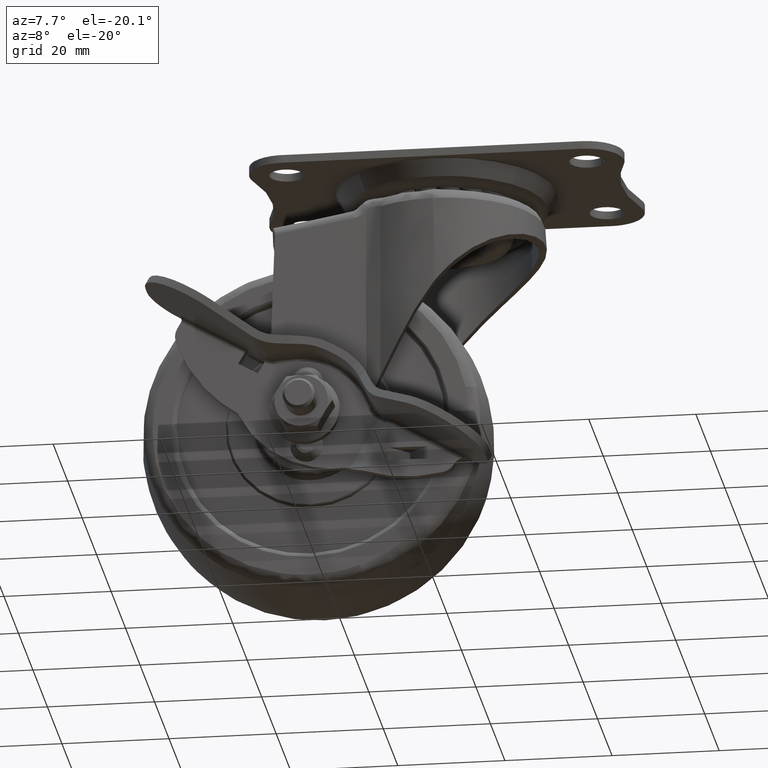
[diagram: clean part render]
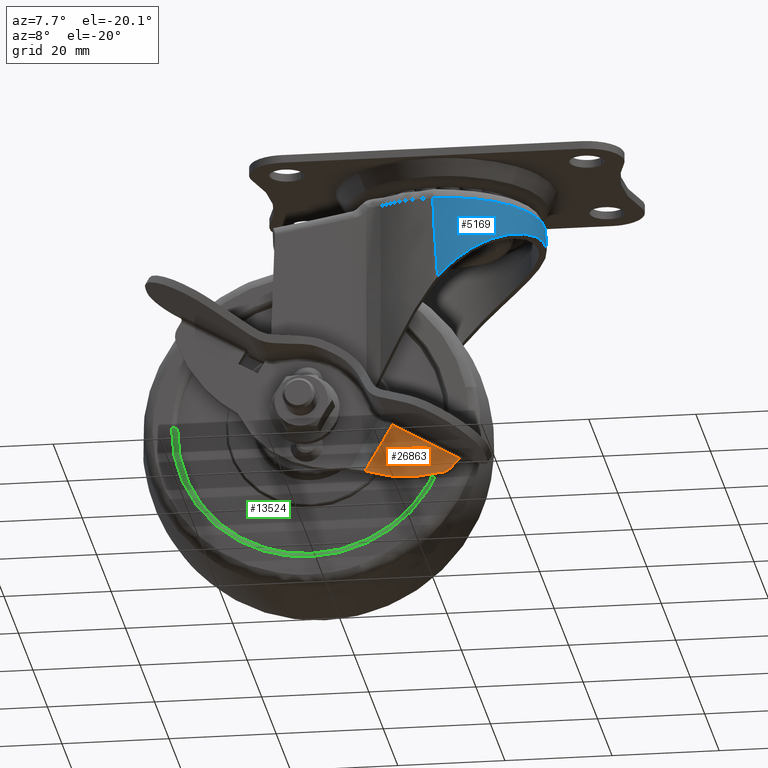
[diagram: same view with three faces highlighted in distinct colors, each labeled with its STEP entity id]
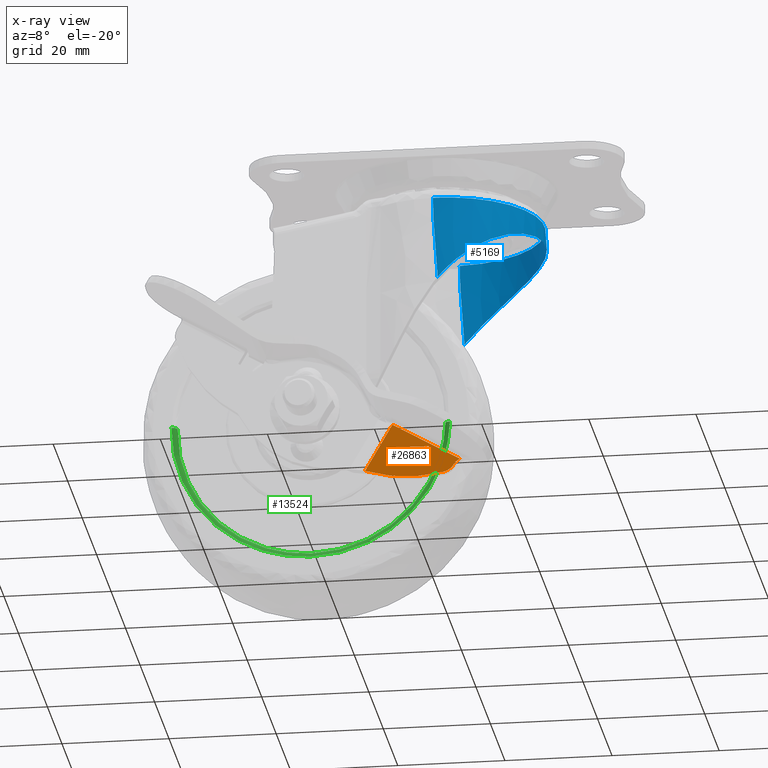
[diagram: x-ray of the same camera — body ghosted, the three highlighted faces saturated]
A machine part, auxiliary view with three faces highlighted in distinct colors.
The next image is the same camera in x-ray (body ghosted, the three faces saturated) — at least one of them is partly hidden behind the body in this view.
Their STEP definitions:

[orange] entity #26863 — the highlighted face is a freeform B-spline surface patch.
#24188=CARTESIAN_POINT('',(-3.760554572550980,-18.200001000000050,-37.886882688781149));
#24189=VERTEX_POINT('',#24188);
#24200=CARTESIAN_POINT('',(-2.585290771482475,-18.200001000000050,-39.979433434913901));
#24201=VERTEX_POINT('',#24200);
#24202=CARTESIAN_POINT('',(-2.585290771482475,-18.200001000000050,-39.979433434913901));
#24203=CARTESIAN_POINT('',(-3.760554572550980,-18.200001000000050,-37.886882688781149));
#24204=QUASI_UNIFORM_CURVE('',1,(#24202,#24203),.UNSPECIFIED.,.F.,.U.);
#24205=EDGE_CURVE('',#24201,#24189,#24204,.T.);
#24241=CARTESIAN_POINT('',(3.110047271129015,-18.200001000000050,-34.028066049158546));
#24242=VERTEX_POINT('',#24241);
#24258=CARTESIAN_POINT('',(4.285310611342440,-18.200001000000050,-36.120615974741447));
#24259=VERTEX_POINT('',#24258);
#24268=CARTESIAN_POINT('',(3.110047271129015,-18.200001000000050,-34.028066049158546));
#24269=CARTESIAN_POINT('',(4.285310611342440,-18.200001000000050,-36.120615974741447));
#24270=QUASI_UNIFORM_CURVE('',1,(#24268,#24269),.UNSPECIFIED.,.F.,.U.);
#24271=EDGE_CURVE('',#24242,#24259,#24270,.T.);
#24382=CARTESIAN_POINT('',(-5.099997016335720,-18.200001000000050,-33.500016200391762));
#24383=VERTEX_POINT('',#24382);
#24439=CARTESIAN_POINT('',(-5.099997016335720,-18.200001000000050,-43.723593691209487));
#24440=VERTEX_POINT('',#24439);
#24451=CARTESIAN_POINT('',(-5.099997016335720,-18.200001000000050,-33.500016200391762));
#24452=CARTESIAN_POINT('',(-5.099997016335720,-18.200001000000050,-43.723593691209487));
#24453=QUASI_UNIFORM_CURVE('',1,(#24451,#24452),.UNSPECIFIED.,.F.,.U.);
#24454=EDGE_CURVE('',#24383,#24440,#24453,.T.);
#24547=CARTESIAN_POINT('',(9.500011608893679,-18.200000999999951,-33.500043960416249));
#24548=VERTEX_POINT('',#24547);
#24549=CARTESIAN_POINT('',(9.500011608893679,-18.200000999999951,-33.500043960416249));
#24550=CARTESIAN_POINT('',(-5.099997016335720,-18.200001000000050,-33.500016200391762));
#24551=QUASI_UNIFORM_CURVE('',1,(#24549,#24550),.UNSPECIFIED.,.F.,.U.);
#24552=EDGE_CURVE('',#24548,#24383,#24551,.T.);
#25460=CARTESIAN_POINT('',(9.000099699842162,-18.200001000000050,-34.978723908718749));
#25461=VERTEX_POINT('',#25460);
#25462=CARTESIAN_POINT('',(9.000099699842162,-18.200001000000050,-34.978723908718749));
#25463=CARTESIAN_POINT('',(9.001881380710193,-18.200001000000011,-34.763765464275430));
#25464=CARTESIAN_POINT('',(9.075090063611201,-18.200000999999919,-34.235234355348801));
#25465=CARTESIAN_POINT('',(9.311214726225023,-18.200000999999929,-33.751240275202257));
#25466=CARTESIAN_POINT('',(9.500011608893679,-18.200000999999951,-33.500043960416249));
#25467=B_SPLINE_CURVE_WITH_KNOTS('',3,(#25462,#25463,#25464,#25465,#25466),.UNSPECIFIED.,.F.,.U.,(4,1,4),(0.000000038030307,0.644908400968077,1.587459451626553),.UNSPECIFIED.);
#25468=EDGE_CURVE('',#25461,#24548,#25467,.T.);
#26130=CARTESIAN_POINT('',(8.018981607633881,-18.200001000000050,-37.172269456478951));
#26131=VERTEX_POINT('',#26130);
#26137=CARTESIAN_POINT('',(-5.099997016335720,-18.200001000000050,-43.723593691209487));
#26138=CARTESIAN_POINT('',(-4.112255990179443,-18.200001000000071,-43.535533027594042));
#26139=CARTESIAN_POINT('',(-1.631563796275703,-18.200001000000061,-42.918022641952668));
#26140=CARTESIAN_POINT('',(1.748905572819824,-18.200001000000121,-41.545046553451577));
#26141=CARTESIAN_POINT('',(5.154651901472310,-18.200001000000078,-39.540696212099057));
#26142=CARTESIAN_POINT('',(7.046402674110341,-18.200001000000078,-38.057133756000127));
#26143=CARTESIAN_POINT('',(8.018981607633881,-18.200001000000050,-37.172269456478951));
#26144=B_SPLINE_CURVE_WITH_KNOTS('',3,(#26137,#26138,#26139,#26140,#26141,#26142,#26143),.UNSPECIFIED.,.F.,.U.,(4,1,1,1,4),(4.931676E-009,3.016472451849115,7.657200474243243,10.905715521691510,14.850336306112579),.UNSPECIFIED.);
#26145=EDGE_CURVE('',#24440,#26131,#26144,.T.);
#26198=CARTESIAN_POINT('',(8.018981607633881,-18.200001000000050,-37.172269456478951));
#26199=CARTESIAN_POINT('',(8.266803752465545,-18.200001000000061,-36.947111580387350));
#26200=CARTESIAN_POINT('',(8.605005679874410,-18.200001000000089,-36.515432134636377));
#26201=CARTESIAN_POINT('',(8.923662425377994,-18.200001000000121,-35.750650303717457));
#26202=CARTESIAN_POINT('',(8.997792402454531,-18.200001000000061,-35.262015585171177));
#26203=CARTESIAN_POINT('',(9.000099699842162,-18.200001000000050,-34.978723908718749));
#26204=B_SPLINE_CURVE_WITH_KNOTS('',3,(#26198,#26199,#26200,#26201,#26202,#26203),.UNSPECIFIED.,.F.,.U.,(4,1,1,4),(0.000000041465652,1.004425111143239,1.622505027469119,2.472403478058530),.UNSPECIFIED.);
#26205=EDGE_CURVE('',#26131,#25461,#26204,.T.);
#26837=CARTESIAN_POINT('',(-5.829267555922717,-18.200000999999951,-44.234262459274298));
#26838=CARTESIAN_POINT('',(10.229282409549169,-18.200000999999951,-44.234262459274291));
#26839=CARTESIAN_POINT('',(-5.829267555922717,-18.200000999999951,-32.989347432326952));
#26840=CARTESIAN_POINT('',(10.229282409549169,-18.200000999999951,-32.989347432326952));
#26841=B_SPLINE_SURFACE_WITH_KNOTS('',1,1,((#26837,#26839),(#26838,#26840)),.UNSPECIFIED.,.F.,.F.,.U.,(2,2),(2,2),(0.0,16.058549965471890),(0.0,11.244915026947350),.UNSPECIFIED.);
#26842=ORIENTED_EDGE('',*,*,#24552,.T.);
#26843=ORIENTED_EDGE('',*,*,#24454,.T.);
#26844=ORIENTED_EDGE('',*,*,#26145,.T.);
#26845=ORIENTED_EDGE('',*,*,#26205,.T.);
#26846=ORIENTED_EDGE('',*,*,#25468,.T.);
#26847=EDGE_LOOP('',(#26842,#26843,#26844,#26845,#26846));
#26848=FACE_OUTER_BOUND('',#26847,.T.);
#26849=CARTESIAN_POINT('',(4.285310611342440,-18.200001000000050,-36.120615974741447));
#26850=CARTESIAN_POINT('',(-2.585290771482475,-18.200001000000050,-39.979433434913901));
#26851=QUASI_UNIFORM_CURVE('',1,(#26849,#26850),.UNSPECIFIED.,.F.,.U.);
#26852=EDGE_CURVE('',#24259,#24201,#26851,.T.);
#26853=ORIENTED_EDGE('',*,*,#26852,.T.);
#26854=ORIENTED_EDGE('',*,*,#24205,.T.);
#26855=CARTESIAN_POINT('',(-3.760554572550980,-18.200001000000050,-37.886882688781149));
#26856=CARTESIAN_POINT('',(3.110047271129015,-18.200001000000050,-34.028066049158546));
#26857=QUASI_UNIFORM_CURVE('',1,(#26855,#26856),.UNSPECIFIED.,.F.,.U.);
#26858=EDGE_CURVE('',#24189,#24242,#26857,.T.);
#26859=ORIENTED_EDGE('',*,*,#26858,.T.);
#26860=ORIENTED_EDGE('',*,*,#24271,.T.);
#26861=EDGE_LOOP('',(#26853,#26854,#26859,#26860));
#26862=FACE_BOUND('',#26861,.T.);
#26863=ADVANCED_FACE('',(#26848,#26862),#26841,.T.);

[blue] entity #5169 — the highlighted face is a freeform B-spline surface patch.
#4642=CARTESIAN_POINT('',(-0.124183915955278,18.499212722890999,-7.398438102774410));
#4643=VERTEX_POINT('',#4642);
#4778=CARTESIAN_POINT('',(-0.124183915955352,-18.499212722890999,-7.398438102774410));
#4779=VERTEX_POINT('',#4778);
#4791=CARTESIAN_POINT('',(-0.124183915955278,18.499212722890999,-7.398438102774410));
#4792=CARTESIAN_POINT('',(18.236654602632651,18.330664406769301,-7.230263392723984));
#4793=CARTESIAN_POINT('',(18.236654602632651,1.665785E-013,-7.230263392723982));
#4794=CARTESIAN_POINT('',(18.236654602632651,-18.330664406768964,-7.230263392723984));
#4795=CARTESIAN_POINT('',(-0.124183915955339,-18.499212722890999,-7.398438102774412));
#4803=(BOUNDED_CURVE()B_SPLINE_CURVE(2,(#4791,#4792,#4793,#4794,#4795),.UNSPECIFIED.,.F.,.U.)B_SPLINE_CURVE_WITH_KNOTS((3,2,3),(0.0,0.500000000000000,1.0),.UNSPECIFIED.)CURVE()GEOMETRIC_REPRESENTATION_ITEM()RATIONAL_B_SPLINE_CURVE((1.0,0.710350224567669,1.0,0.710350224567669,1.0))REPRESENTATION_ITEM(''));
#4804=EDGE_CURVE('',#4643,#4779,#4803,.T.);
#4830=CARTESIAN_POINT('',(9.947598E-013,18.499994788543699,-11.728746361509000));
#4831=VERTEX_POINT('',#4830);
#4832=CARTESIAN_POINT('',(9.947598E-013,18.499994788543699,-11.728746361509000));
#4833=CARTESIAN_POINT('',(-0.124183915955278,18.499212722890999,-7.398438102774410));
#4834=QUASI_UNIFORM_CURVE('',1,(#4832,#4833),.UNSPECIFIED.,.F.,.U.);
#4835=EDGE_CURVE('',#4831,#4643,#4834,.T.);
#4945=CARTESIAN_POINT('',(9.775167E-013,-18.499994788544701,-11.728746361508881));
#4946=VERTEX_POINT('',#4945);
#4952=CARTESIAN_POINT('',(-0.124183915955352,-18.499212722890999,-7.398438102774410));
#4953=CARTESIAN_POINT('',(9.775167E-013,-18.499994788544701,-11.728746361508881));
#4954=QUASI_UNIFORM_CURVE('',1,(#4952,#4953),.UNSPECIFIED.,.F.,.U.);
#4955=EDGE_CURVE('',#4779,#4946,#4954,.T.);
#5028=CARTESIAN_POINT('',(0.307942596464959,18.493655302378340,-23.386676899766879));
#5029=CARTESIAN_POINT('',(-0.804177533850864,18.493655302378340,-7.044271339017797));
#5030=CARTESIAN_POINT('',(19.751220436647351,19.003972994167544,-22.063538723749211));
#5031=CARTESIAN_POINT('',(18.639100306331528,19.003972994167544,-5.721133163000137));
#5032=CARTESIAN_POINT('',(19.242080288076451,-0.484273407275633,-22.098186316251599));
#5033=CARTESIAN_POINT('',(18.129960157760632,-0.484273407275633,-5.755780755502531));
#5034=CARTESIAN_POINT('',(18.732940139505541,-19.972519808718818,-22.132833908753984));
#5035=CARTESIAN_POINT('',(17.620820009189721,-19.972519808718818,-5.790428348004926));
#5036=CARTESIAN_POINT('',(-0.657045027602577,-18.442965478672740,-23.452345455001389));
#5037=CARTESIAN_POINT('',(-1.769165157918400,-18.442965478672740,-7.109939894252329));
#5045=(BOUNDED_SURFACE()B_SPLINE_SURFACE(1,2,((#5028,#5030,#5032,#5034,#5036),(#5029,#5031,#5033,#5035,#5037)),.UNSPECIFIED.,.F.,.F.,.U.)B_SPLINE_SURFACE_WITH_KNOTS((2,2),(3,2,3),(0.0,16.380202400955131),(0.0,31.792900085474269,63.585800170948552),.UNSPECIFIED.)GEOMETRIC_REPRESENTATION_ITEM()RATIONAL_B_SPLINE_SURFACE(((1.0,0.688354575693754,1.0,0.688354575693754,1.0),(1.0,0.688354575693754,1.0,0.688354575693754,1.0)))REPRESENTATION_ITEM('')SURFACE());
#5046=CARTESIAN_POINT('',(0.764635258192483,18.499994788544701,-22.964924140131551));
#5047=VERTEX_POINT('',#5046);
#5048=CARTESIAN_POINT('',(0.764635258192483,18.499994788544701,-22.964924140131551));
#5049=CARTESIAN_POINT('',(9.947598E-013,18.499994788543699,-11.728746361509000));
#5050=QUASI_UNIFORM_CURVE('',1,(#5048,#5049),.UNSPECIFIED.,.F.,.U.);
#5051=EDGE_CURVE('',#5047,#4831,#5050,.T.);
#5052=ORIENTED_EDGE('',*,*,#5051,.T.);
#5053=ORIENTED_EDGE('',*,*,#4835,.T.);
#5054=ORIENTED_EDGE('',*,*,#4804,.T.);
#5055=ORIENTED_EDGE('',*,*,#4955,.T.);
#5056=CARTESIAN_POINT('',(0.764635258192480,-18.499994788543699,-22.964924140131600));
#5057=VERTEX_POINT('',#5056);
#5058=CARTESIAN_POINT('',(0.764635258192480,-18.499994788543699,-22.964924140131600));
#5059=CARTESIAN_POINT('',(9.775167E-013,-18.499994788544701,-11.728746361508881));
#5060=QUASI_UNIFORM_CURVE('',1,(#5058,#5059),.UNSPECIFIED.,.F.,.U.);
#5061=EDGE_CURVE('',#5057,#4946,#5060,.T.);
#5062=ORIENTED_EDGE('',*,*,#5061,.F.);
#5063=CARTESIAN_POINT('',(0.764635258192534,18.499994788544701,-22.964924140131590));
#5064=CARTESIAN_POINT('',(0.981367129685784,18.499994788544690,-22.713375665610489));
#5065=CARTESIAN_POINT('',(1.201693366090477,18.495584855724680,-22.463987833194491));
#5066=CARTESIAN_POINT('',(1.537677216807746,18.481737453002690,-22.093162783301938));
#5067=CARTESIAN_POINT('',(1.650687236740920,18.475907729757811,-21.969992322659181));
#5068=CARTESIAN_POINT('',(1.877695053429074,18.461784500975039,-21.725661606536089));
#5069=CARTESIAN_POINT('',(1.991765690828718,18.453490036339641,-21.604418254421262));
#5070=CARTESIAN_POINT('',(2.564897419778493,18.405683787878701,-21.002792048264279));
#5071=CARTESIAN_POINT('',(3.032294278490292,18.347198543472150,-20.536174150602630));
#5072=CARTESIAN_POINT('',(3.983467439221932,18.184989395909970,-19.631914228243531));
#5073=CARTESIAN_POINT('',(4.467246614756705,18.081278083070700,-19.194272312211648));
#5074=CARTESIAN_POINT('',(5.449736534148959,17.822958290038560,-18.347743501247219));
#5075=CARTESIAN_POINT('',(5.948451264257896,17.668368487678080,-17.938856463315311));
#5076=CARTESIAN_POINT('',(6.580178612358600,17.438924360126769,-17.445687161428900));
#5077=CARTESIAN_POINT('',(6.706940230807167,17.391220962142341,-17.347950698107461));
#5078=CARTESIAN_POINT('',(6.961268161713835,17.292056017014740,-17.154273474758959));
#5079=CARTESIAN_POINT('',(7.088717438788416,17.240633977715540,-17.058425881884698));
#5080=CARTESIAN_POINT('',(7.469898866850990,17.081552434350652,-16.775272497357321));
#5081=CARTESIAN_POINT('',(7.723190237578830,16.968799965915050,-16.591800353664858));
#5082=CARTESIAN_POINT('',(8.479960163827318,16.610022095126130,-16.056727015336090));
#5083=CARTESIAN_POINT('',(8.980345900517063,16.343505997427751,-15.720457440859001));
#5084=CARTESIAN_POINT('',(9.969377016833814,15.752917184122561,-15.086185816102420));
#5085=CARTESIAN_POINT('',(10.458031121802680,15.428857360361130,-14.788184773944380));
#5086=CARTESIAN_POINT('',(11.419661834351960,14.719202239008860,-14.228183773448770));
#5087=CARTESIAN_POINT('',(11.892651353792180,14.333627972235741,-13.966183382090360));
#5088=CARTESIAN_POINT('',(12.471141639281621,13.809718621311010,-13.659981541131820));
#5089=CARTESIAN_POINT('',(12.585869301042401,13.703126916927850,-13.599983585479910));
#5090=CARTESIAN_POINT('',(12.812460958467980,13.487150926455181,-13.482844734044400));
#5091=CARTESIAN_POINT('',(13.148465713764759,13.158623971942159,-13.311204053265920));
#5092=CARTESIAN_POINT('',(13.472699646095259,12.816475535596719,-13.151317916386990));
#5093=CARTESIAN_POINT('',(14.105073580553301,12.114093424333261,-12.846147722526251));
#5094=CARTESIAN_POINT('',(14.505231257959990,11.621765254924810,-12.662133219850650));
#5095=CARTESIAN_POINT('',(15.259847770390580,10.588448063751271,-12.328226916203249));
#5096=CARTESIAN_POINT('',(15.614320735042449,10.047469329752740,-12.178337535588440));
#5097=CARTESIAN_POINT('',(16.026306551794921,9.339639599540481,-12.010070930468499));
#5098=CARTESIAN_POINT('',(16.107271090968599,9.196255182358424,-11.977324738004279));
#5099=CARTESIAN_POINT('',(16.265318191152819,8.907533766670884,-11.913976136699230));
#5100=CARTESIAN_POINT('',(16.342357092951929,8.762294372000300,-11.883389878070830));
#5101=CARTESIAN_POINT('',(16.567550641533781,8.323971508353528,-11.794748591883989));
#5102=CARTESIAN_POINT('',(16.709785763352070,8.028285266992523,-11.739806875093610));
#5103=CARTESIAN_POINT('',(17.112922867786828,7.130993907433786,-11.586425685553980));
#5104=CARTESIAN_POINT('',(17.350315596481931,6.519185762392306,-11.499372356796099));
#5105=CARTESIAN_POINT('',(17.761573280567760,5.268581617815018,-11.351770219288090));
#5106=CARTESIAN_POINT('',(17.935448525779108,4.629789031732808,-11.291224119897789));
#5107=CARTESIAN_POINT('',(18.111338414242098,3.813963615183126,-11.230819955609229));
#5108=CARTESIAN_POINT('',(18.144479978179021,3.649686645866969,-11.219493345921030));
#5109=CARTESIAN_POINT('',(18.206216280778921,3.321173323171090,-11.198472553397529));
#5110=CARTESIAN_POINT('',(18.234843550675659,3.156819519190338,-11.188767037658730));
#5111=CARTESIAN_POINT('',(18.314072344358031,2.663470346306199,-11.161990524757529));
#5112=CARTESIAN_POINT('',(18.358025611653840,2.334187456503734,-11.147255273919169));
#5113=CARTESIAN_POINT('',(18.463666475463430,1.345208796964357,-11.111961675370400));
#5114=CARTESIAN_POINT('',(18.499206771980120,0.684386631680628,-11.100252350101609));
#5115=CARTESIAN_POINT('',(18.500755852156139,-0.640244856148940,-11.099739655351630));
#5116=CARTESIAN_POINT('',(18.466770174910021,-1.304053915966214,-11.110932567425550));
#5117=CARTESIAN_POINT('',(18.379504477927700,-2.135744438968100,-11.140077692001590));
#5118=CARTESIAN_POINT('',(18.359770179167111,-2.302420702918663,-11.146681824379060));
#5119=CARTESIAN_POINT('',(18.316011930959512,-2.634120613834334,-11.161372050676210));
#5120=CARTESIAN_POINT('',(18.291980910873480,-2.799277694357452,-11.169460467678739));
#5121=CARTESIAN_POINT('',(18.213518593500488,-3.292693856369217,-11.195967387840680));
#5122=CARTESIAN_POINT('',(18.152722560135579,-3.618899536744259,-11.216623834914961));
#5123=CARTESIAN_POINT('',(17.945390425139141,-4.589426229843163,-11.287780257418040));
#5124=CARTESIAN_POINT('',(17.773974244251850,-5.225681328841513,-11.347407907615070));
#5125=CARTESIAN_POINT('',(17.365876316602382,-6.476714034051923,-11.493704960630239));
#5126=CARTESIAN_POINT('',(17.129193483251662,-7.091492322428850,-11.580364714354710));
#5127=CARTESIAN_POINT('',(16.791968278340409,-7.846074754631925,-11.708511047589090));
#5128=CARTESIAN_POINT('',(16.722331127850659,-7.996537182682600,-11.735182859565580));
#5129=CARTESIAN_POINT('',(16.579556182036470,-8.294645156223911,-11.790351545319060));
#5130=CARTESIAN_POINT('',(16.360207132791249,-8.737506908866122,-11.875815479622780));
#5131=CARTESIAN_POINT('',(16.125627814605071,-9.167633092525644,-11.969607399717050));
#5132=CARTESIAN_POINT('',(15.636885486601400,-10.011204972217140,-12.168934027333821));
#5133=CARTESIAN_POINT('',(15.284986272117360,-10.551385670700959,-12.317432408987660));
#5134=CARTESIAN_POINT('',(14.531773604012351,-11.587884805427230,-12.650081561373920));
#5135=CARTESIAN_POINT('',(14.130451478160911,-12.084199731583750,-12.834224367868821));
#5136=CARTESIAN_POINT('',(13.598853672129900,-12.676728986305809,-13.090367853179631));
#5137=CARTESIAN_POINT('',(13.490862353591590,-12.794018510763429,-13.142983958504040));
#5138=CARTESIAN_POINT('',(13.272807127011490,-13.024823278669491,-13.250477718009350));
#5139=CARTESIAN_POINT('',(12.942868809899190,-13.365132782436300,-13.414979372724691));
#5140=CARTESIAN_POINT('',(12.604730717102910,-13.688077590330300,-13.589448698883780));
#5141=CARTESIAN_POINT('',(11.918403412483521,-14.311533570013060,-13.952220438450610));
#5142=CARTESIAN_POINT('',(11.447471338466320,-14.697298465956701,-14.212494340234739));
#5143=CARTESIAN_POINT('',(10.482906750068810,-15.411807668197371,-14.773220146534481));
#5144=CARTESIAN_POINT('',(9.989264361259904,-15.740541293869670,-15.073669667278750));
#5145=CARTESIAN_POINT('',(9.360198572270694,-16.116799489014952,-15.476799454578790));
#5146=CARTESIAN_POINT('',(9.233610307563321,-16.190410930515249,-15.558920861975899));
#5147=CARTESIAN_POINT('',(8.980525436288515,-16.333487714690239,-15.725168895915431));
#5148=CARTESIAN_POINT('',(8.600816401666945,-16.542031952741802,-15.977680003445130));
#5149=CARTESIAN_POINT('',(8.221111773875981,-16.732878905939149,-16.239662288790839));
#5150=CARTESIAN_POINT('',(7.462322367481770,-17.092190818282269,-16.776416716689731));
#5151=CARTESIAN_POINT('',(6.957299851770717,-17.301927265104439,-17.151299945450781));
#5152=CARTESIAN_POINT('',(5.951865967709049,-17.667154434566829,-17.936171488700889));
#5153=CARTESIAN_POINT('',(5.451448653472802,-17.822631320651610,-18.346159348421640));
#5154=CARTESIAN_POINT('',(4.830466291830931,-17.985747663095829,-18.881344277358231));
#5155=CARTESIAN_POINT('',(4.706347549707168,-18.016841558675718,-18.989649510667061));
#5156=CARTESIAN_POINT('',(4.459537942725135,-18.075744338288018,-19.207721360654730));
#5157=CARTESIAN_POINT('',(4.091401838649722,-18.159199804266439,-19.537063898062701));
#5158=CARTESIAN_POINT('',(3.729514876472210,-18.228539976872081,-19.873086978635630));
#5159=CARTESIAN_POINT('',(3.014116379362458,-18.349786788347359,-20.553992421535781));
#5160=CARTESIAN_POINT('',(2.548348372823501,-18.407411205726309,-21.019736654908630));
#5161=CARTESIAN_POINT('',(1.639430945615643,-18.482522392308830,-21.974709205303999));
#5162=CARTESIAN_POINT('',(1.196280661025714,-18.499994788544701,-22.463937636076459));
#5163=CARTESIAN_POINT('',(0.764635258192480,-18.499994788543699,-22.964924140131600));
#5164=B_SPLINE_CURVE_WITH_KNOTS('',3,(#5063,#5064,#5065,#5066,#5067,#5068,#5069,#5070,#5071,#5072,#5073,#5074,#5075,#5076,#5077,#5078,#5079,#5080,#5081,#5082,#5083,#5084,#5085,#5086,#5087,#5088,#5089,#5090,#5091,#5092,#5093,#5094,#5095,#5096,#5097,#5098,#5099,#5100,#5101,#5102,#5103,#5104,#5105,#5106,#5107,#5108,#5109,#5110,#5111,#5112,#5113,#5114,#5115,#5116,#5117,#5118,#5119,#5120,#5121,#5122,#5123,#5124,#5125,#5126,#5127,#5128,#5129,#5130,#5131,#5132,#5133,#5134,#5135,#5136,#5137,#5138,#5139,#5140,#5141,#5142,#5143,#5144,#5145,#5146,#5147,#5148,#5149,#5150,#5151,#5152,#5153,#5154,#5155,#5156,#5157,#5158,#5159,#5160,#5161,#5162,#5163),.UNSPECIFIED.,.F.,.U.,(4,2,2,2,2,2,2,2,2,2,2,2,2,2,1,2,2,2,2,2,2,2,2,2,2,2,2,2,2,2,2,2,2,2,1,2,2,2,2,1,2,2,2,2,1,2,2,2,2,1,2,2,4),(0.0,0.015625000000000,0.023437500000000,0.031250000000001,0.062500000000001,0.093750000000002,0.125000000000002,0.132812500000002,0.140625000000002,0.156250000000002,0.187500000000002,0.218750000000002,0.250000000000003,0.257812500000003,0.265625000000003,0.281250000000003,0.312500000000003,0.343750000000003,0.351562500000003,0.359375000000003,0.375000000000002,0.406250000000002,0.437500000000002,0.445312500000002,0.453125000000002,0.468750000000002,0.500000000000002,0.531250000000002,0.539062500000002,0.546875000000002,0.562500000000002,0.593750000000002,0.625000000000001,0.632812500000001,0.640625000000001,0.656250000000001,0.687500000000001,0.718750000000001,0.726562500000001,0.734375000000001,0.750000000000001,0.781250000000001,0.812500000000001,0.820312500000001,0.828125000000001,0.843750000000001,0.875000000000000,0.906250000000000,0.914062500000000,0.921875000000000,0.937500000000000,0.968750000000000,1.0),.UNSPECIFIED.);
#5165=EDGE_CURVE('',#5047,#5057,#5164,.T.);
#5166=ORIENTED_EDGE('',*,*,#5165,.F.);
#5167=EDGE_LOOP('',(#5052,#5053,#5054,#5055,#5062,#5166));
#5168=FACE_OUTER_BOUND('',#5167,.T.);
#5169=ADVANCED_FACE('',(#5168),#5045,.T.);

[green] entity #13524 — the highlighted face is a freeform B-spline surface patch.
#13324=CARTESIAN_POINT('',(1.991788921352081,-10.499999999999231,-48.653378481554341));
#13325=VERTEX_POINT('',#13324);
#13344=CARTESIAN_POINT('',(-49.991788921352082,-10.499999999999231,-47.346613518445672));
#13345=VERTEX_POINT('',#13344);
#13364=CARTESIAN_POINT('',(-48.992104732082367,-9.500000001323350,-47.371743613911363));
#13365=VERTEX_POINT('',#13364);
#13366=CARTESIAN_POINT('',(-49.991788921352082,-10.499999999999231,-47.346613518445672));
#13367=CARTESIAN_POINT('',(-49.836334630569681,-10.500284754646851,-47.350521333744332));
#13368=CARTESIAN_POINT('',(-49.583068009447928,-10.439604856316700,-47.356887958761121));
#13369=CARTESIAN_POINT('',(-49.292432224680468,-10.234784599871270,-47.364193971095347));
#13370=CARTESIAN_POINT('',(-49.063403878367488,-9.941411396565158,-47.369951293526427));
#13371=CARTESIAN_POINT('',(-48.991720084730026,-9.671903085418530,-47.371753283190991));
#13372=CARTESIAN_POINT('',(-48.992104732082367,-9.500000001323350,-47.371743613911363));
#13373=B_SPLINE_CURVE_WITH_KNOTS('',3,(#13366,#13367,#13368,#13369,#13370,#13371,#13372),.UNSPECIFIED.,.F.,.U.,(4,1,1,1,4),(0.000000316505297,0.466345497130817,0.760921236893074,1.055397102929190,1.570835743941760),.UNSPECIFIED.);
#13374=EDGE_CURVE('',#13345,#13365,#13373,.T.);
#13394=CARTESIAN_POINT('',(0.992104732082364,-9.500000001323350,-48.628248386088657));
#13395=VERTEX_POINT('',#13394);
#13413=CARTESIAN_POINT('',(1.991788921352081,-10.499999999999231,-48.653378481554341));
#13414=CARTESIAN_POINT('',(1.836341964437511,-10.500265853098581,-48.649470850614598));
#13415=CARTESIAN_POINT('',(1.583071470014193,-10.439619845419680,-48.643104128230910));
#13416=CARTESIAN_POINT('',(1.251716515220813,-10.206284045610900,-48.634774516002572));
#13417=CARTESIAN_POINT('',(1.042296333441781,-9.892713396331777,-48.629510104284677));
#13418=CARTESIAN_POINT('',(0.992027840436179,-9.622712628356720,-48.628246453183237));
#13419=CARTESIAN_POINT('',(0.992104732082364,-9.500000001323350,-48.628248386088657));
#13420=B_SPLINE_CURVE_WITH_KNOTS('',3,(#13413,#13414,#13415,#13416,#13417,#13418,#13419),.UNSPECIFIED.,.F.,.U.,(4,1,1,1,4),(0.000000316501944,0.466345497128752,0.760921236891705,1.202671760614365,1.570835743941756),.UNSPECIFIED.);
#13421=EDGE_CURVE('',#13325,#13395,#13420,.T.);
#13426=CARTESIAN_POINT('',(-50.061492968498740,-10.497566176014034,-47.344861295745254));
#13427=CARTESIAN_POINT('',(-50.716627672753482,-10.497566176014033,-73.406354264244001));
#13428=CARTESIAN_POINT('',(-24.655134704254728,-10.497566176014034,-74.061488968498736));
#13429=CARTESIAN_POINT('',(1.406358264244010,-10.497566176014033,-74.716623672753471));
#13430=CARTESIAN_POINT('',(2.061492968498751,-10.497566176014034,-48.655130704254731));
#13431=CARTESIAN_POINT('',(-48.914793218701917,-10.577741431062732,-47.373687073392020));
#13432=CARTESIAN_POINT('',(-49.541102145309907,-10.577741431062734,-72.288480292093936));
#13433=CARTESIAN_POINT('',(-24.626308926607987,-10.577741431062732,-72.914789218701912));
#13434=CARTESIAN_POINT('',(0.288484292093915,-10.577741431062734,-73.541098145309931));
#13435=CARTESIAN_POINT('',(0.914793218701911,-10.577741431062732,-48.626304926607986));
#13436=CARTESIAN_POINT('',(-48.994511627361696,-9.430649336847154,-47.371683109300463));
#13437=CARTESIAN_POINT('',(-49.622824518061222,-9.430649336847155,-72.366194736662166));
#13438=CARTESIAN_POINT('',(-24.628312890699529,-9.430649336847154,-72.994507627361685));
#13439=CARTESIAN_POINT('',(0.366198736662157,-9.430649336847155,-73.622820518061232));
#13440=CARTESIAN_POINT('',(0.994511627361699,-9.430649336847154,-48.628308890699536));
#13448=(BOUNDED_SURFACE()B_SPLINE_SURFACE(2,2,((#13426,#13431,#13436),(#13427,#13432,#13437),(#13428,#13433,#13438),(#13429,#13434,#13439),(#13430,#13435,#13440)),.UNSPECIFIED.,.F.,.F.,.U.)B_SPLINE_SURFACE_WITH_KNOTS((3,2,3),(3,3),(0.0,43.193736417828013,86.387472835656013),(0.0,1.822372713440190),.UNSPECIFIED.)GEOMETRIC_REPRESENTATION_ITEM()RATIONAL_B_SPLINE_SURFACE(((0.910893718343268,0.599412520818554,0.915966658889343),(0.644099125180754,0.423848658198922,0.647686235841439),(0.910893718343268,0.599412520818554,0.915966658889343),(0.644099125180754,0.423848658198922,0.647686235841439),(0.910893718343268,0.599412520818554,0.915966658889343)))REPRESENTATION_ITEM('')SURFACE());
#13449=CARTESIAN_POINT('',(-24.0,-10.499999999999220,-73.999995999999996));
#13450=VERTEX_POINT('',#13449);
#13451=CARTESIAN_POINT('',(-24.0,-10.499999999999220,-73.999995999999996));
#13452=CARTESIAN_POINT('',(-22.639496551109641,-10.499999999999170,-74.000058189972620));
#13453=CARTESIAN_POINT('',(-19.709179426810110,-10.499999999999320,-73.769546766463549));
#13454=CARTESIAN_POINT('',(-15.990529320687941,-10.499999999999231,-72.829802849611411));
#13455=CARTESIAN_POINT('',(-12.888318854561010,-10.499999999999140,-71.556447847949045));
#13456=CARTESIAN_POINT('',(-9.932720583811552,-10.499999999999380,-69.972275869109353));
#13457=CARTESIAN_POINT('',(-7.011806779654542,-10.499999999998940,-67.824818179851789));
#13458=CARTESIAN_POINT('',(-4.614961745102200,-10.499999999999311,-65.400997162651549));
#13459=CARTESIAN_POINT('',(-2.816964199150601,-10.499999999999170,-63.150954409150529));
#13460=CARTESIAN_POINT('',(-0.993404786103755,-10.499999999999190,-60.334704743593292));
#13461=CARTESIAN_POINT('',(0.487250529771312,-10.499999999999369,-57.024376458630137));
#13462=CARTESIAN_POINT('',(1.630380190148419,-10.499999999998931,-52.936393932450052));
#13463=CARTESIAN_POINT('',(1.949898935150650,-10.499999999999600,-50.327333595586431));
#13464=CARTESIAN_POINT('',(1.991788921352081,-10.499999999999231,-48.653378481554341));
#13465=B_SPLINE_CURVE_WITH_KNOTS('',3,(#13451,#13452,#13453,#13454,#13455,#13456,#13457,#13458,#13459,#13460,#13461,#13462,#13463,#13464),.UNSPECIFIED.,.F.,.U.,(4,1,1,1,1,1,1,1,1,1,1,4),(0.000000070480041,4.081516587022200,8.790969716742008,11.459672110207070,14.128373130363251,18.837846971379989,22.291363540844181,24.332153585895909,27.471795123387231,32.338233186357172,35.163917150929663,40.187314265635592),.UNSPECIFIED.);
#13466=EDGE_CURVE('',#13450,#13325,#13465,.T.);
#13467=ORIENTED_EDGE('',*,*,#13466,.T.);
#13468=ORIENTED_EDGE('',*,*,#13421,.T.);
#13469=CARTESIAN_POINT('',(-24.0,-9.499999999999240,-72.999996000000010));
#13470=VERTEX_POINT('',#13469);
#13471=CARTESIAN_POINT('',(-24.0,-9.499999999999240,-72.999996000000010));
#13472=CARTESIAN_POINT('',(-22.742145505392831,-9.499999999999213,-73.000026175683089));
#13473=CARTESIAN_POINT('',(-19.823858737490571,-9.500000000011264,-72.779467983736978));
#13474=CARTESIAN_POINT('',(-16.052009215628800,-9.500000000063652,-71.814085854496270));
#13475=CARTESIAN_POINT('',(-12.489266317806420,-9.500000000147212,-70.275809979971598));
#13476=CARTESIAN_POINT('',(-9.806619658275833,-9.500000000234678,-68.666389984841260));
#13477=CARTESIAN_POINT('',(-7.042300439212284,-9.500000000353921,-66.475516550442634));
#13478=CARTESIAN_POINT('',(-4.875324758218731,-9.500000000475977,-64.217170887321757));
#13479=CARTESIAN_POINT('',(-2.821876083039875,-9.500000000629807,-61.412181478018439));
#13480=CARTESIAN_POINT('',(-1.430069445192753,-9.500000000763857,-58.895263936129282));
#13481=CARTESIAN_POINT('',(-0.202435265906923,-9.500000000931250,-55.860320516233202));
#13482=CARTESIAN_POINT('',(0.678517139064204,-9.500000001107328,-52.596436918908829));
#13483=CARTESIAN_POINT('',(0.958051878818876,-9.500000001249822,-49.986309069743243));
#13484=CARTESIAN_POINT('',(0.992104732082364,-9.500000001323350,-48.628248386088657));
#13485=B_SPLINE_CURVE_WITH_KNOTS('',3,(#13471,#13472,#13473,#13474,#13475,#13476,#13477,#13478,#13479,#13480,#13481,#13482,#13483,#13484),.UNSPECIFIED.,.F.,.U.,(4,1,1,1,1,1,1,1,1,1,1,4),(0.000000072784928,3.773592192285229,8.754748136445258,11.622686205250609,15.396289190420330,18.113307584371210,22.188724488100409,24.754788299115511,28.528403595840139,30.792573525803700,34.566193464186277,38.641648332373791),.UNSPECIFIED.);
#13486=EDGE_CURVE('',#13470,#13395,#13485,.T.);
#13487=ORIENTED_EDGE('',*,*,#13486,.F.);
#13488=CARTESIAN_POINT('',(-48.992104732082367,-9.500000001323350,-47.371743613911363));
#13489=CARTESIAN_POINT('',(-49.028787009271930,-9.500000001193394,-48.825902171078333));
#13490=CARTESIAN_POINT('',(-48.876335626593253,-9.500000000982730,-51.272135580325291));
#13491=CARTESIAN_POINT('',(-48.046422692778890,-9.500000000667420,-55.192528159022856));
#13492=CARTESIAN_POINT('',(-46.773440786378657,-9.500000000417586,-58.560237354082403));
#13493=CARTESIAN_POINT('',(-44.765801587009207,-9.500000000181082,-62.089218494723283));
#13494=CARTESIAN_POINT('',(-42.282276800502871,-9.499999999995838,-65.244527524968504));
#13495=CARTESIAN_POINT('',(-39.240184744855640,-9.499999999871875,-67.946444997634742));
#13496=CARTESIAN_POINT('',(-35.997520147075072,-9.499999999809326,-70.026775636834799));
#13497=CARTESIAN_POINT('',(-33.156475351466568,-9.499999999801704,-71.330230818288570));
#13498=CARTESIAN_POINT('',(-30.183394945489400,-9.499999999830287,-72.277952092091013));
#13499=CARTESIAN_POINT('',(-27.272887297043141,-9.499999999888253,-72.856954503418180));
#13500=CARTESIAN_POINT('',(-25.090962147148581,-9.499999999958199,-73.000033635778266));
#13501=CARTESIAN_POINT('',(-24.0,-9.499999999999240,-72.999996000000010));
#13502=B_SPLINE_CURVE_WITH_KNOTS('',3,(#13488,#13489,#13490,#13491,#13492,#13493,#13494,#13495,#13496,#13497,#13498,#13499,#13500,#13501),.UNSPECIFIED.,.F.,.U.,(4,1,1,1,1,1,1,1,1,1,1,4),(0.000000076635004,4.363844415379511,7.325071826369396,12.000667300667409,15.117715107767220,19.481598792028290,24.001282839284610,27.274208890370510,31.014689591935571,33.352482606789849,36.625404103565572,39.898291308167067),.UNSPECIFIED.);
#13503=EDGE_CURVE('',#13365,#13470,#13502,.T.);
#13504=ORIENTED_EDGE('',*,*,#13503,.F.);
#13505=ORIENTED_EDGE('',*,*,#13374,.F.);
#13506=CARTESIAN_POINT('',(-49.991788921352082,-10.499999999999231,-47.346613518445672));
#13507=CARTESIAN_POINT('',(-50.028537935565353,-10.499999999999231,-48.804924744312572));
#13508=CARTESIAN_POINT('',(-49.846164737082951,-10.499999999999201,-51.890124369913622));
#13509=CARTESIAN_POINT('',(-48.828189425634221,-10.499999999999259,-56.110303493755033));
#13510=CARTESIAN_POINT('',(-47.281236771656502,-10.499999999999140,-59.749431463400477));
#13511=CARTESIAN_POINT('',(-45.235782226922410,-10.499999999999440,-63.193796158316019));
#13512=CARTESIAN_POINT('',(-42.698510144137899,-10.499999999998771,-66.237438105322582));
#13513=CARTESIAN_POINT('',(-39.578948328524390,-10.499999999999480,-68.922356417458786));
#13514=CARTESIAN_POINT('',(-36.752256022598601,-10.499999999999121,-70.735826733120192));
#13515=CARTESIAN_POINT('',(-33.481436646830680,-10.499999999999259,-72.298718978873055));
#13516=CARTESIAN_POINT('',(-29.348717892387270,-10.499999999999190,-73.616173044776005));
#13517=CARTESIAN_POINT('',(-25.945066838095979,-10.499999999999231,-74.000396857946811));
#13518=CARTESIAN_POINT('',(-24.0,-10.499999999999220,-73.999995999999996));
#13519=B_SPLINE_CURVE_WITH_KNOTS('',3,(#13506,#13507,#13508,#13509,#13510,#13511,#13512,#13513,#13514,#13515,#13516,#13517,#13518),.UNSPECIFIED.,.F.,.U.,(4,1,1,1,1,1,1,1,1,1,4),(0.000000071750641,4.376329751796881,9.238944948196433,12.966959837480729,16.208693101823179,21.233360069561389,24.799280057611480,28.527265820702340,31.282755549822209,35.659107594254408,41.494222960513341),.UNSPECIFIED.);
#13520=EDGE_CURVE('',#13345,#13450,#13519,.T.);
#13521=ORIENTED_EDGE('',*,*,#13520,.T.);
#13522=EDGE_LOOP('',(#13467,#13468,#13487,#13504,#13505,#13521));
#13523=FACE_OUTER_BOUND('',#13522,.T.);
#13524=ADVANCED_FACE('',(#13523),#13448,.T.);